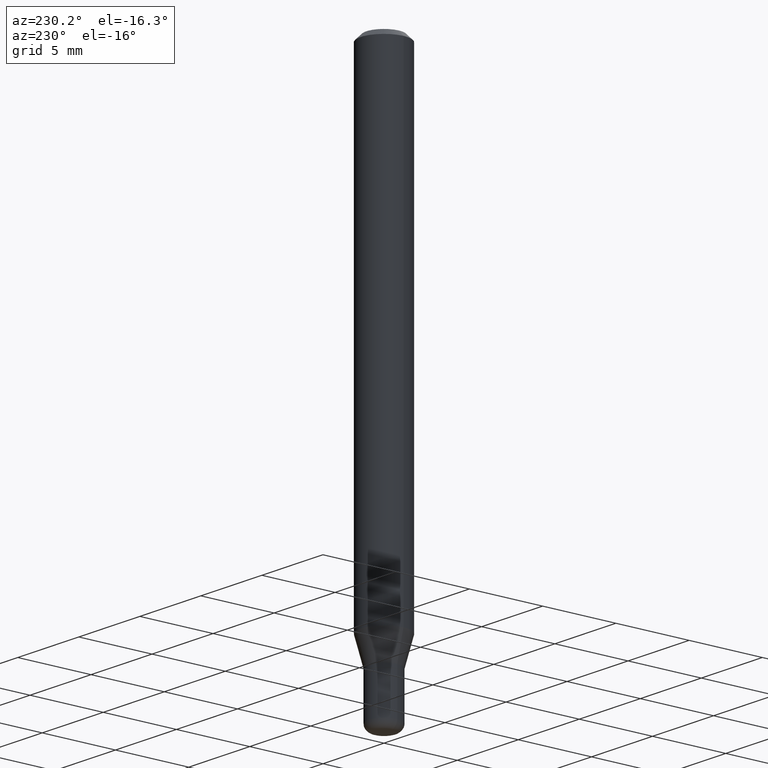
[diagram: clean part render]
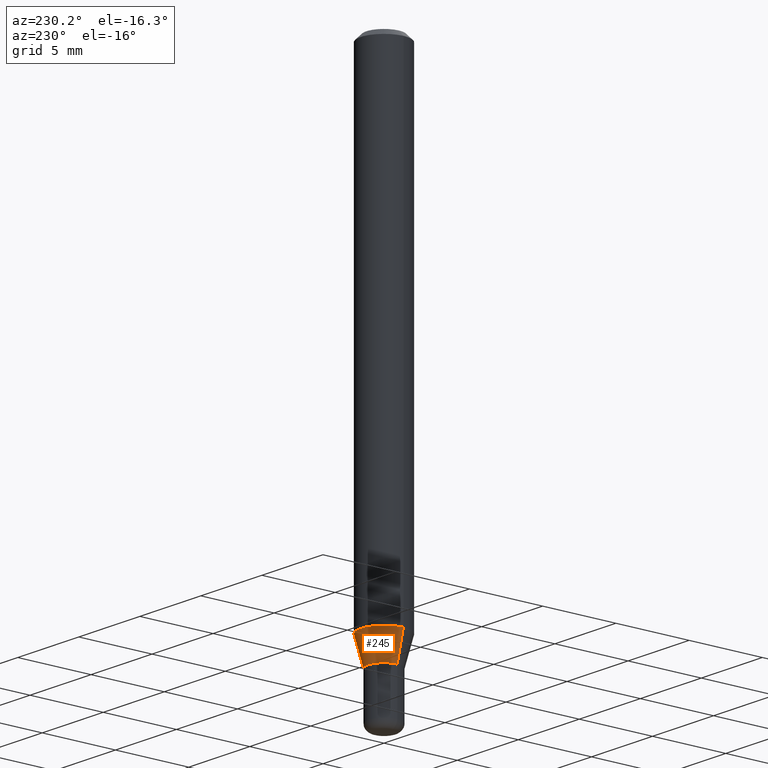
[diagram: same view with one face highlighted and labeled with its STEP entity id]
A machine part, auxiliary view. The second image highlights one B-rep face of the part: STEP entity #245.
In plain terms, the highlighted conical surface has half-angle 15 deg.
Its self-contained STEP definition (entity closure, byte-faithful):
#25 = CARTESIAN_POINT ( 'NONE',  ( 3.148196237364002379E-29, -4.494789868499541434E-15, -1.287358983848622795 ) ) ;
#30 = FACE_OUTER_BOUND ( 'NONE', #471, .T. ) ;
#38 = ORIENTED_EDGE ( 'NONE', *, *, #166, .F. ) ;
#43 = VERTEX_POINT ( 'NONE', #498 ) ;
#62 = EDGE_CURVE ( 'NONE', #163, #43, #137, .T. ) ;
#67 = CARTESIAN_POINT ( 'NONE',  ( -0.04250000000000003081, -4.252058789727899918E-15, -1.362000000000000099 ) ) ;
#76 = AXIS2_PLACEMENT_3D ( 'NONE', #366, #89, #281 ) ;
#89 = DIRECTION ( 'NONE',  ( -2.445468806185136597E-29, 3.491481338843145583E-15, 1.000000000000000000 ) ) ;
#137 = LINE ( 'NONE', #222, #385 ) ;
#138 = CARTESIAN_POINT ( 'NONE',  ( 3.330728514024156148E-29, -4.755397583504364259E-15, -1.362000000000000099 ) ) ;
#141 = CONICAL_SURFACE ( 'NONE', #475, 0.04250000000000003081, 0.2617993877991497409 ) ;
#151 = DIRECTION ( 'NONE',  ( 1.000000000000000000, -6.982962677686262766E-15, 0.000000000000000000 ) ) ;
#163 = VERTEX_POINT ( 'NONE', #67 ) ;
#165 = CIRCLE ( 'NONE', #76, 0.04250000000000003081 ) ;
#166 = EDGE_CURVE ( 'NONE', #220, #43, #265, .T. ) ;
#194 = CARTESIAN_POINT ( 'NONE',  ( 0.04250000000000003081, -5.052173497306030910E-15, -1.362000000000000099 ) ) ;
#220 = VERTEX_POINT ( 'NONE', #442 ) ;
#222 = CARTESIAN_POINT ( 'NONE',  ( -0.04250000000000003081, -4.453416920806321806E-15, -1.362000000000000099 ) ) ;
#227 = CARTESIAN_POINT ( 'NONE',  ( 0.04250000000000003081, -5.052173497306030910E-15, -1.362000000000000099 ) ) ;
#242 = VERTEX_POINT ( 'NONE', #227 ) ;
#245 = ADVANCED_FACE ( 'NONE', ( #30 ), #141, .T. ) ;
#254 = AXIS2_PLACEMENT_3D ( 'NONE', #25, #513, #151 ) ;
#265 = CIRCLE ( 'NONE', #254, 0.06250000000000000000 ) ;
#273 = VECTOR ( 'NONE', #506, 39.37007874015748143 ) ;
#281 = DIRECTION ( 'NONE',  ( 1.000000000000000000, -6.982962677686269866E-15, 0.000000000000000000 ) ) ;
#286 = EDGE_CURVE ( 'NONE', #242, #220, #338, .T. ) ;
#338 = LINE ( 'NONE', #194, #273 ) ;
#342 = ORIENTED_EDGE ( 'NONE', *, *, #286, .F. ) ;
#365 = ORIENTED_EDGE ( 'NONE', *, *, #62, .T. ) ;
#366 = CARTESIAN_POINT ( 'NONE',  ( 3.330728514024156148E-29, -4.755397583504364259E-15, -1.362000000000000099 ) ) ;
#385 = VECTOR ( 'NONE', #459, 39.37007874015748143 ) ;
#442 = CARTESIAN_POINT ( 'NONE',  ( 0.06250000000000000000, -4.931225035854932314E-15, -1.287358983848622795 ) ) ;
#453 = EDGE_CURVE ( 'NONE', #242, #163, #165, .T. ) ;
#459 = DIRECTION ( 'NONE',  ( -0.2588190451025210725, 5.211531920934548675E-15, 0.9659258262890682012 ) ) ;
#471 = EDGE_LOOP ( 'NONE', ( #490, #365, #38, #342 ) ) ;
#472 = DIRECTION ( 'NONE',  ( 1.000000000000000000, -6.982962677686269866E-15, 0.000000000000000000 ) ) ;
#475 = AXIS2_PLACEMENT_3D ( 'NONE', #138, #510, #472 ) ;
#490 = ORIENTED_EDGE ( 'NONE', *, *, #453, .T. ) ;
#498 = CARTESIAN_POINT ( 'NONE',  ( -0.06250000000000000000, -4.050700658649478029E-15, -1.287358983848622795 ) ) ;
#506 = DIRECTION ( 'NONE',  ( 0.2588190451025210725, 1.565188264969624137E-15, 0.9659258262890682012 ) ) ;
#510 = DIRECTION ( 'NONE',  ( -2.445468806185136597E-29, 3.491481338843145583E-15, 1.000000000000000000 ) ) ;
#513 = DIRECTION ( 'NONE',  ( -2.445468806185136597E-29, 3.491481338843145583E-15, 1.000000000000000000 ) ) ;